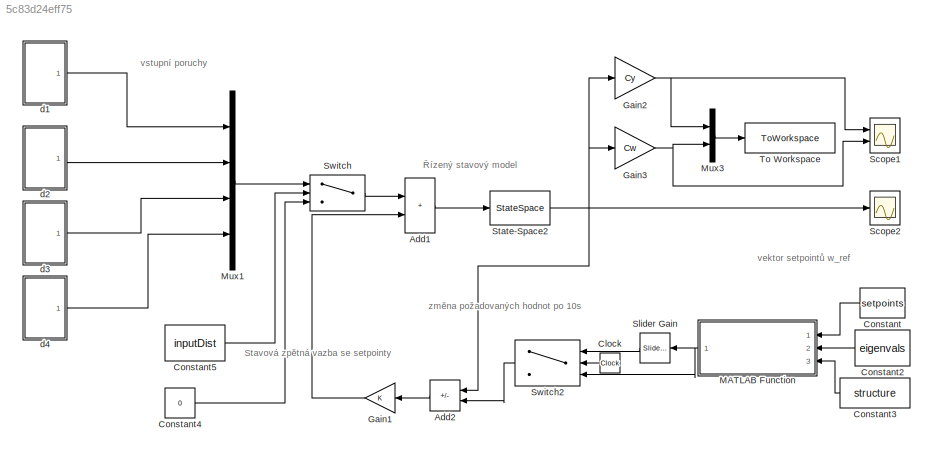
MODEL slx_5c83d24eff75
KIND model
CONFIG AbsTol = auto
CONFIG EnableMultiTasking = off
CONFIG FixedStep = auto
CONFIG MaxStep = auto
CONFIG MinStep = auto
CONFIG RelTol = 1e-9
CONFIG SampleTimeConstraint = Unconstrained
CONFIG SolverName = VariableStepAuto
CONFIG StartTime = 0.0
CONFIG StopTime = 90
BLOCK [Sum] Add1
  IconShape = rectangular
  Ports = [2, 1]
BLOCK [Sum] Add2
  IconShape = rectangular
  Inputs = +-
  NameLocation = top
  Ports = [2, 1]
BLOCK [Clock] Clock
  NameLocation = top
BLOCK [Constant] Constant
  NameLocation = top
  Value = setpoints
BLOCK [Constant] Constant2
  NameLocation = top
  Value = eigenvals
BLOCK [Constant] Constant3
  NameLocation = top
  Value = structure
BLOCK [Constant] Constant4
  Value = 0
BLOCK [Constant] Constant5
  Value = inputDist
BLOCK [Gain] Gain1
  Gain = K
  Multiplication = Matrix(K*u)
  NameLocation = top
BLOCK [Gain] Gain2
  Gain = Cy
  Multiplication = Matrix(K*u)
BLOCK [Gain] Gain3
  Gain = Cw
  Multiplication = Matrix(K*u)
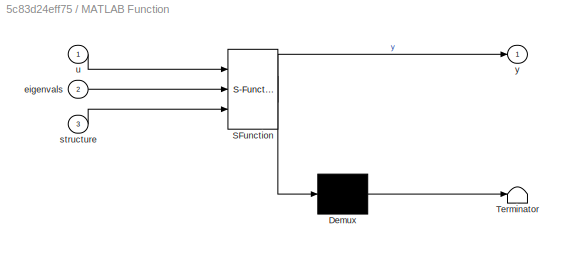
BLOCK [SubSystem] MATLAB Function
  ErrorFcn = Stateflow.Translate.translate
  NameLocation = top
  PermitHierarchicalResolution = ExplicitOnly
  Ports = [3, 1]
  RequestExecContextInheritance = off
  SFBlockType = MATLAB Function
  TreatAsAtomicUnit = on
BLOCK [Demux] MATLAB Function/ Demux 
  Outputs = 1
  Ports = [1, 1]
BLOCK [S-Function] MATLAB Function/ SFunction 
  EnableBusSupport = on
  FunctionName = sf_sfun
  PortCounts = [3 2]
  Ports = [3, 2]
  SFcnIsStateOwnerBlock = off
  SFunctionDeploymentMode = off
  Tag = Stateflow S-Function 2
BLOCK [Terminator] MATLAB Function/ Terminator 
BLOCK [Inport] MATLAB Function/eigenvals
  Port = 2
BLOCK [Inport] MATLAB Function/structure
  Port = 3
BLOCK [Inport] MATLAB Function/u
BLOCK [Outport] MATLAB Function/y
BLOCK [Mux] Mux1
  DisplayOption = bar
  Ports = [4, 1]
BLOCK [Mux] Mux3
  DisplayOption = bar
  Inputs = 2
  Ports = [2, 1]
BLOCK [Scope] Scope1
  Floating = off
  NumInputPorts = 2
  Ports = [2]
  ScopeSpecificationString = Simulink.scopes.TimeScopeBlockCfg('CurrentConfiguration', extmgr.ConfigurationSet(extmgr.Configuration('Core','General UI',true),extmgr.Configuration('Core','Source UI',true),extmgr.Configuration('Sources','WiredSimulink',true,'DataLoggingVariableName','ScopeData1'),extmgr.Configuration('Visuals','Time Domain',true,'SerializedDisplays',{struct('MinYLimReal','-1.37482','MaxYLimReal','2.37498','YLab...<+1696ch>
BLOCK [Scope] Scope2
  Floating = off
  NumInputPorts = 1
  Ports = [1]
  ScopeSpecificationString = Simulink.scopes.TimeScopeBlockCfg('CurrentConfiguration', extmgr.ConfigurationSet(extmgr.Configuration('Core','General UI',true),extmgr.Configuration('Core','Source UI',true),extmgr.Configuration('Sources','WiredSimulink',true),extmgr.Configuration('Visuals','Time Domain',true,'SerializedDisplays',{struct('MinYLimReal','-2.04955','MaxYLimReal','4.69208','YLabelReal','','MinYLimMag','0.00000','MaxY...<+1681ch>
BLOCK [Reference] Slider Gain  REF=simulink/Math
Operations/Slider
Gain
  NameLocation = top
  Ports = [1, 1]
  SourceBlock = simulink/Math\nOperations/Slider\nGain
  SourceProductBaseCode = SL
  SourceType = Slider Gain
BLOCK [StateSpace] State-Space2
  A = A
  B = B
  C = C
  D = D
  InitialCondition = conds
  ParameterTunability = Optimized
  Ports = [1, 1]
BLOCK [Switch] Switch
  Criteria = u2 > Threshold
  InputSameDT = off
  SaturateOnIntegerOverflow = off
BLOCK [Switch] Switch2
  InputSameDT = off
  NameLocation = top
  SaturateOnIntegerOverflow = off
  Threshold = 10
BLOCK [ToWorkspace] To Workspace
  FixptAsFi = on
  MaxDataPoints = inf
  Ports = [1]
  SampleTime = -1
  SaveFormat = Structure
  VariableName = vystup
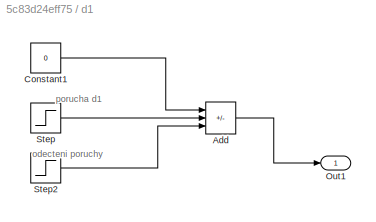
BLOCK [SubSystem] d1
  Ports = [0, 1]
  RequestExecContextInheritance = off
BLOCK [Sum] d1/Add
  IconShape = rectangular
  Inputs = ++-
  Ports = [3, 1]
BLOCK [Constant] d1/Constant1
  Value = 0
BLOCK [Outport] d1/Out1
BLOCK [Step] d1/Step
  After = 2
  SampleTime = 0
  Time = 5
BLOCK [Step] d1/Step2
  After = 2
  SampleTime = 0
  Time = 6
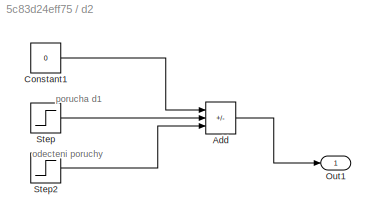
BLOCK [SubSystem] d2
  Ports = [0, 1]
  RequestExecContextInheritance = off
BLOCK [Sum] d2/Add
  IconShape = rectangular
  Inputs = ++-
  Ports = [3, 1]
BLOCK [Constant] d2/Constant1
  Value = 0
BLOCK [Outport] d2/Out1
BLOCK [Step] d2/Step
  After = 2
  SampleTime = 0
  Time = 25
BLOCK [Step] d2/Step2
  After = 2
  SampleTime = 0
  Time = 26
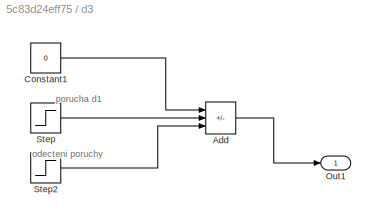
BLOCK [SubSystem] d3
  Ports = [0, 1]
  RequestExecContextInheritance = off
BLOCK [Sum] d3/Add
  IconShape = rectangular
  Inputs = ++-
  Ports = [3, 1]
BLOCK [Constant] d3/Constant1
  Value = 0
BLOCK [Outport] d3/Out1
BLOCK [Step] d3/Step
  After = 2
  SampleTime = 0
  Time = 45
BLOCK [Step] d3/Step2
  After = 2
  SampleTime = 0
  Time = 46
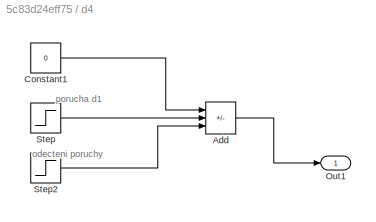
BLOCK [SubSystem] d4
  Ports = [0, 1]
  RequestExecContextInheritance = off
BLOCK [Sum] d4/Add
  IconShape = rectangular
  Inputs = ++-
  Ports = [3, 1]
BLOCK [Constant] d4/Constant1
  Value = 0
BLOCK [Outport] d4/Out1
BLOCK [Step] d4/Step
  After = 2
  SampleTime = 0
  Time = 65
BLOCK [Step] d4/Step2
  After = 2
  SampleTime = 0
  Time = 66
ANNOTATION (root): Stavová zpětná vazba se setpointy
ANNOTATION (root): vektor setpointů w_ref
ANNOTATION (root): vstupní poruchy
ANNOTATION (root): změna požadovaných hodnot po 10s
ANNOTATION (root): Řízený stavový model
ANNOTATION d1: odecteni poruchy
ANNOTATION d1: porucha d1
ANNOTATION d2: odecteni poruchy
ANNOTATION d2: porucha d1
ANNOTATION d3: odecteni poruchy
ANNOTATION d3: porucha d1
ANNOTATION d4: odecteni poruchy
ANNOTATION d4: porucha d1
LINE Add1:1 -> State-Space2:1
LINE Add2:1 -> Gain1:1
LINE Clock:1 -> Switch2:2
LINE Constant2:1 -> MATLAB Function:2
LINE Constant3:1 -> MATLAB Function:3
LINE Constant4:1 -> Switch:3
LINE Constant5:1 -> Switch:2
LINE Constant:1 -> MATLAB Function:1
LINE Gain1:1 -> Add1:2
NET Gain2:1 -> Mux3:1, Scope1:1
NET Gain3:1 -> Mux3:2, Scope1:2
NET MATLAB Function:1 -> Slider Gain:1, Switch2:3
LINE Mux1:1 -> Switch:1
LINE Mux3:1 -> To Workspace:1
LINE Slider Gain:1 -> Switch2:1
NET State-Space2:1 -> Add2:1, Gain2:1, Gain3:1, Scope2:1
LINE Switch2:1 -> Add2:2
LINE Switch:1 -> Add1:1
LINE d1/Add:1 -> d1/Out1:1
LINE d1/Constant1:1 -> d1/Add:1
LINE d1/Step2:1 -> d1/Add:3
LINE d1/Step:1 -> d1/Add:2
LINE d1:1 -> Mux1:1
LINE d2/Add:1 -> d2/Out1:1
LINE d2/Constant1:1 -> d2/Add:1
LINE d2/Step2:1 -> d2/Add:3
LINE d2/Step:1 -> d2/Add:2
LINE d2:1 -> Mux1:2
LINE d3/Add:1 -> d3/Out1:1
LINE d3/Constant1:1 -> d3/Add:1
LINE d3/Step2:1 -> d3/Add:3
LINE d3/Step:1 -> d3/Add:2
LINE d3:1 -> Mux1:3
LINE d4/Add:1 -> d4/Out1:1
LINE d4/Constant1:1 -> d4/Add:1
LINE d4/Step2:1 -> d4/Add:3
LINE d4/Step:1 -> d4/Add:2
LINE d4:1 -> Mux1:4
note: NET lines group one-source signal fan-out (src -> all destinations, sorted); 1:1 wires keep LINE
CHART MATLAB Function states=1 transitions=1
  STATE_LABEL 'eML_blk_kernel()'
  STATE_LABEL 'SCRIPT:\nfunction y = Pgain(u,eigenvals,structure)\nlambda = eigenvals(1);\nnu = eigenvals(2);\nif structure == 1\n    temp = lambda/(lambda-1);\nelseif structure == 2  \n    temp = nu/(nu-1);\nelseif structure == 3\n    if lambda == nu\n        temp = (lambda+nu)/(lambda+nu-2);\n    else\n        temp = lambda/(lambda-1);\n    end\nelseif structure == 5\n    % lqr\n    if eigenvals(3) == 1\n        temp = (eigenv...<+173ch>'
CHART  states=0 transitions=0
